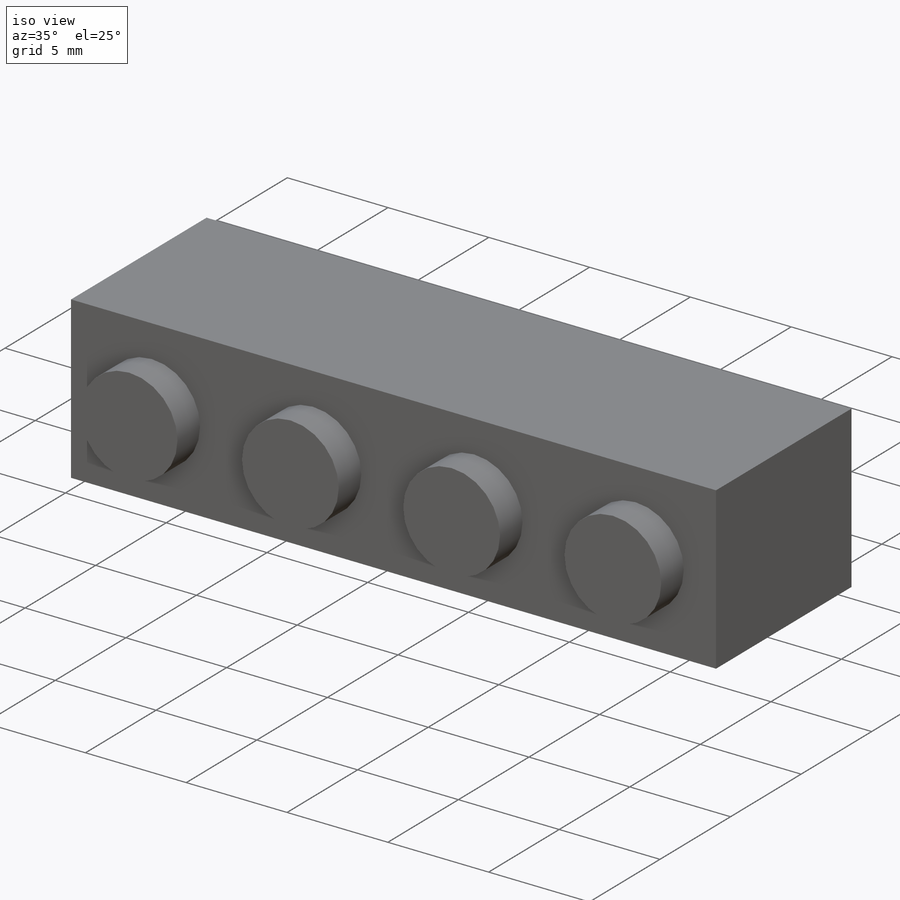
[diagram: iso view]
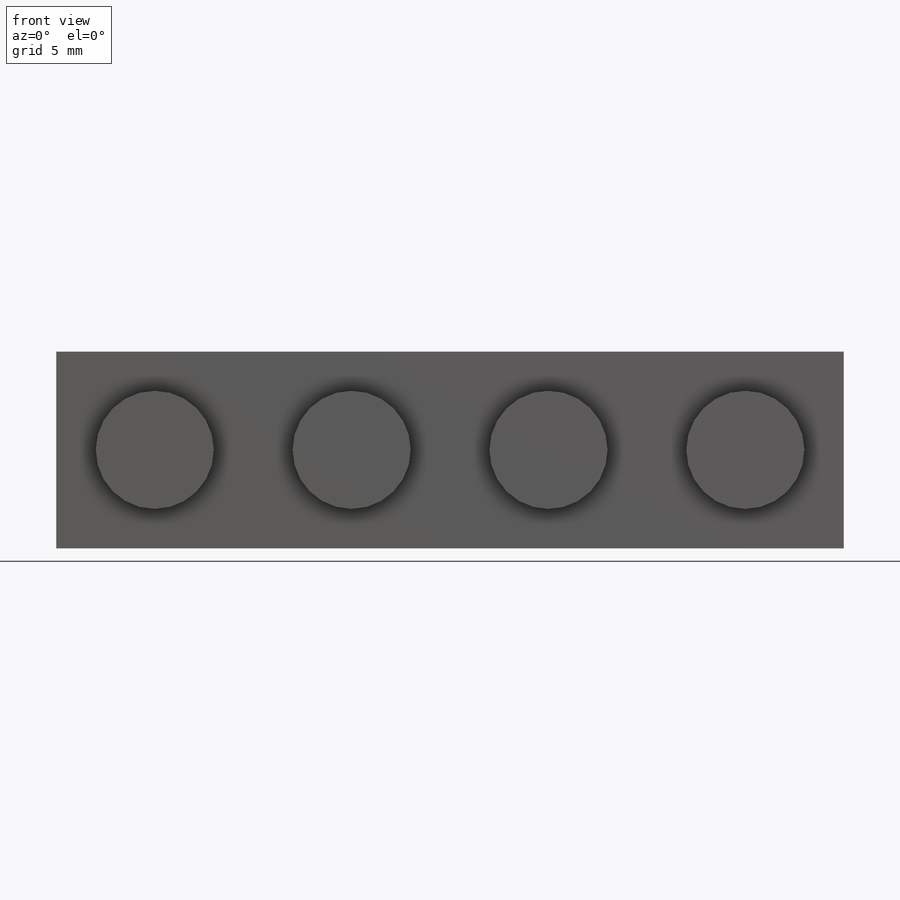
[diagram: front view]
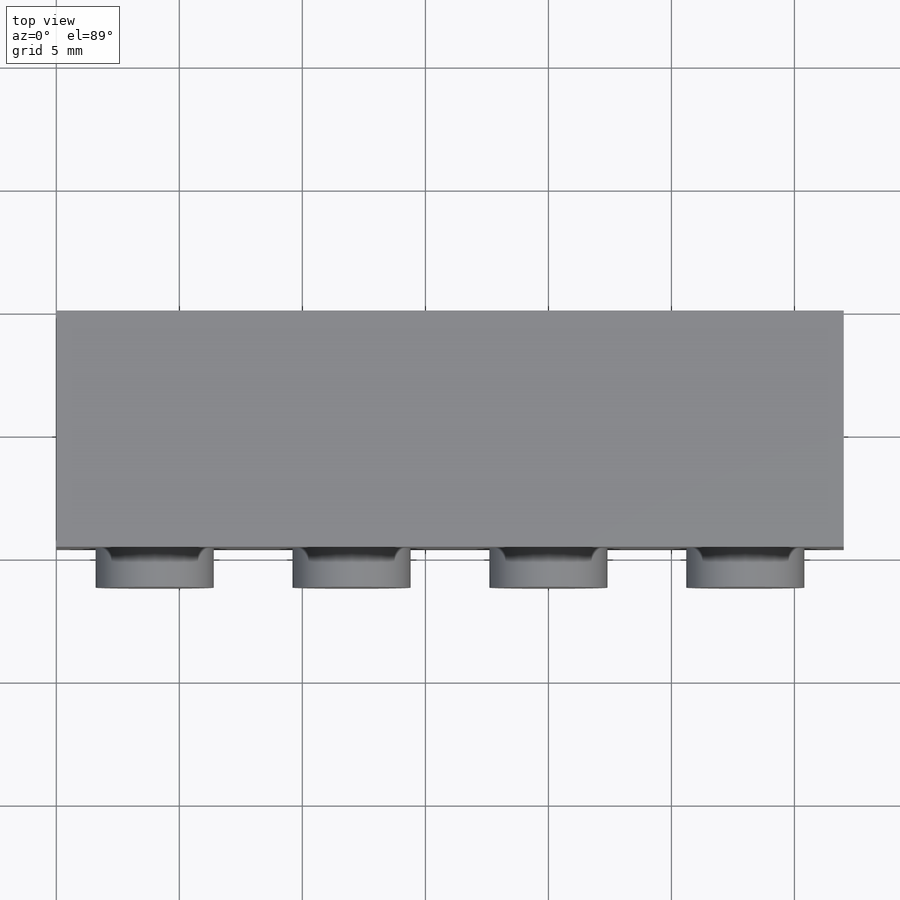
[diagram: top view]
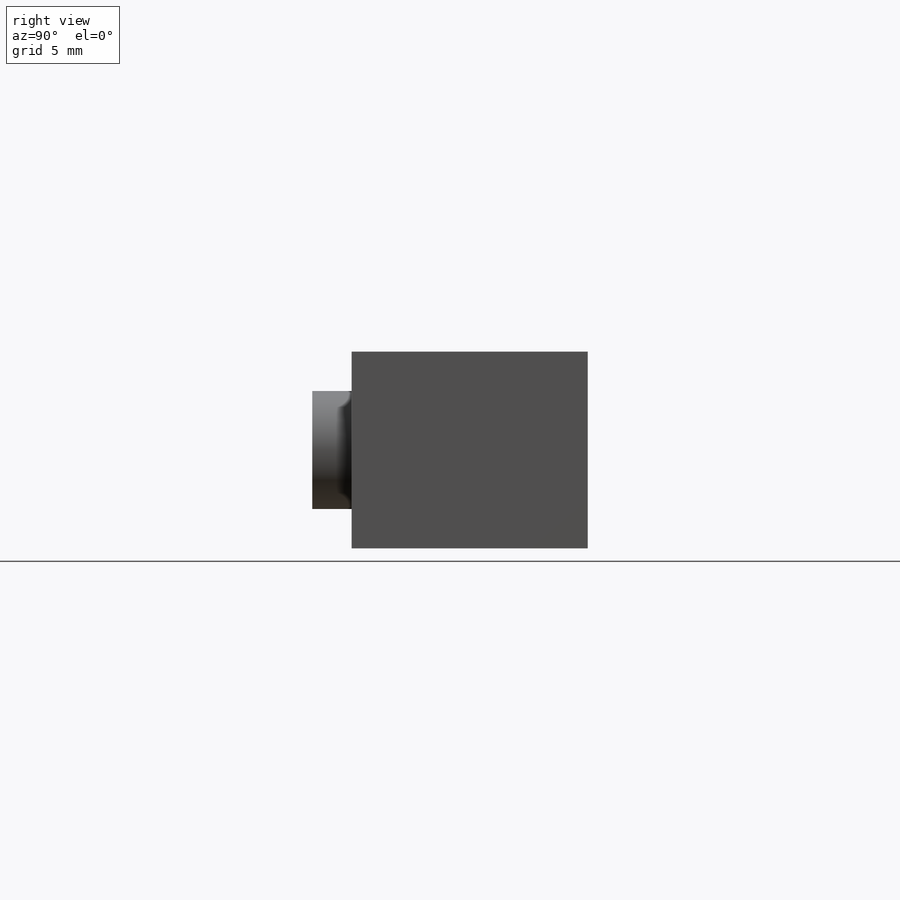
[diagram: right view]
SOLIDWORKS PART (.sldprt)
format: sldprt  version: not decoded by parser v0  size: 184,832 bytes
history: native  units: mm
features: sketch x3, extrude x3, pattern_linear x2, material x1, shell x1 (+12 scaffold rows collapsed)
feature tree (22):
  scaffold x12  (default folders/planes/origin — collapsed)
  material  "Material <not specified>"
  sketch  "Sketch1"  dims[D1=8.0mm D2=32.0mm]
  extrude  "Boss-Extrude1"  Depth=9.6mm
  sketch  "Sketch2"  dims[D1=4.8mm D2=1.6mm D3=1.6mm]
  extrude  "Boss-Extrude2"  Depth=1.6mm
  pattern_linear  "LPattern1"  Count1=4 Count2=1 Spacing1=8mm Spacing2=10mm
  shell  "Shell1"  Thickness=1.6mm
  sketch  "Sketch3"  dims[D1=3.2mm D2=4.0mm D3=8.0mm]
  extrude  "Boss-Extrude3"  Depth=8mm
  pattern_linear  "LPattern2"  Count1=3 Count2=1 Spacing1=8mm Spacing2=10mm
decode coverage: 9 of 9 modeling features carry decoded parameters
note: suppression state not decoded; provenance and decode notes live in map.json
